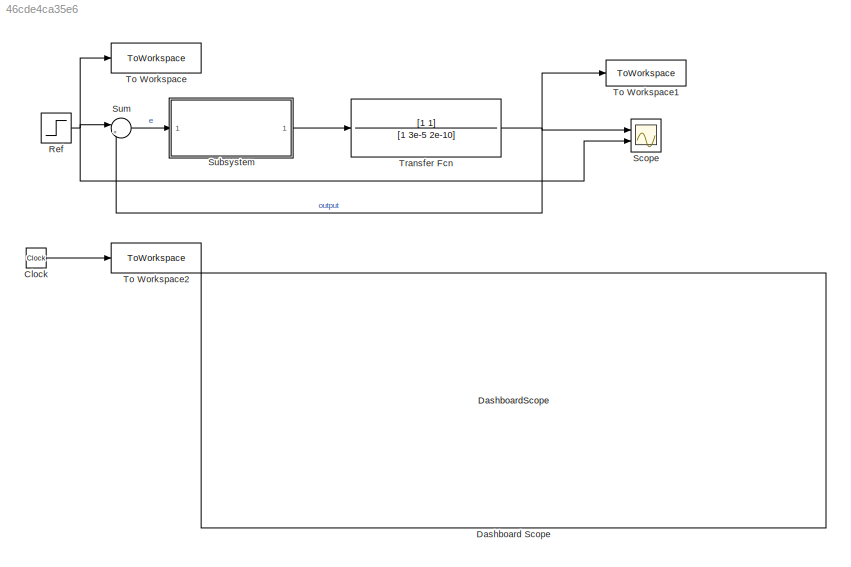
MODEL slx_46cde4ca35e6
KIND model
CONFIG AbsTol = auto
CONFIG EnableMultiTasking = off
CONFIG FixedStep = auto
CONFIG MaxStep = auto
CONFIG MinStep = auto
CONFIG RelTol = 1e-3
CONFIG SampleTimeConstraint = Unconstrained
CONFIG SolverName = VariableStepAuto
CONFIG StartTime = 0.0
CONFIG StopTime = 50
BLOCK [Clock] Clock
BLOCK [DashboardScope] Dashboard Scope
  Ymax = 7
  Ymin = 0
BLOCK [Step] Ref
  After = 5
  SampleTime = 0
BLOCK [Scope] Scope
  Floating = off
  NumInputPorts = 2
  Ports = [2]
  ScopeSpecificationString = Simulink.scopes.TimeScopeBlockCfg('CurrentConfiguration', extmgr.ConfigurationSet(extmgr.Configuration('Core','General UI',true),extmgr.Configuration('Core','Source UI',true),extmgr.Configuration('Sources','WiredSimulink',true),extmgr.Configuration('Visuals','Time Domain',true,'SerializedDisplays',{struct('MinYLimReal','-0.131','MaxYLimReal','1.17902','YLabelReal','','MinYLimMag','0.00000','MaxYLi...<+1430ch>
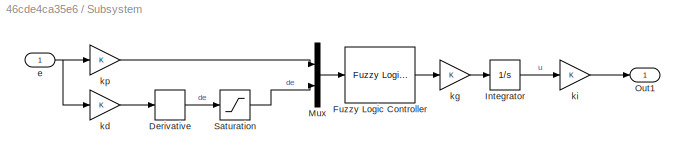
BLOCK [SubSystem] Subsystem
  Ports = [1, 1]
  RequestExecContextInheritance = off
BLOCK [Derivative] Subsystem/Derivative
BLOCK [Reference] Subsystem/Fuzzy Logic Controller  REF=fuzblock/Fuzzy Logic   (lib defined in mdl_858b3b3e7478)
Controller
  Ports = [1, 1]
  SourceBlock = fuzblock/Fuzzy Logic \nController
  SourceProductBaseCode = FL
  SourceType = Fuzzy Inference System
BLOCK [Integrator] Subsystem/Integrator
  Ports = [1, 1]
BLOCK [Mux] Subsystem/Mux
  DisplayOption = bar
  Inputs = 2
  Ports = [2, 1]
BLOCK [Outport] Subsystem/Out1
BLOCK [Saturate] Subsystem/Saturation
  LowerLimit = -3.9
  UpperLimit = 3.9
BLOCK [Inport] Subsystem/e
BLOCK [Gain] Subsystem/kd
BLOCK [Gain] Subsystem/kg
BLOCK [Gain] Subsystem/ki
BLOCK [Gain] Subsystem/kp
BLOCK [Sum] Sum
  Inputs = |+-
  Ports = [2, 1]
BLOCK [ToWorkspace] To Workspace
  FixptAsFi = on
  MaxDataPoints = inf
  Ports = [1]
  SampleTime = 1
  Save2DSignal = 2-D array (concatenate along first dimension)
  VariableName = ref
BLOCK [ToWorkspace] To Workspace1
  FixptAsFi = on
  MaxDataPoints = inf
  Ports = [1]
  SampleTime = 1
  Save2DSignal = 2-D array (concatenate along first dimension)
  VariableName = posModel
BLOCK [ToWorkspace] To Workspace2
  FixptAsFi = on
  MaxDataPoints = inf
  Ports = [1]
  SampleTime = 1
  Save2DSignal = 2-D array (concatenate along first dimension)
  VariableName = Time
BLOCK [TransferFcn] Transfer Fcn
  Denominator = [1 3e-5 2e-10]
  Numerator = [1 1]
LINE Clock:1 -> To Workspace2:1
NET Ref:1 -> Scope:2, Sum:1, To Workspace:1
LINE Subsystem/Derivative:1 -> Subsystem/Saturation:1
LINE Subsystem/Fuzzy Logic Controller:1 -> Subsystem/kg:1
LINE Subsystem/Integrator:1 -> Subsystem/ki:1
LINE Subsystem/Mux:1 -> Subsystem/Fuzzy Logic Controller:1
LINE Subsystem/Saturation:1 -> Subsystem/Mux:2
NET Subsystem/e:1 -> Subsystem/kd:1, Subsystem/kp:1
LINE Subsystem/kd:1 -> Subsystem/Derivative:1
LINE Subsystem/kg:1 -> Subsystem/Integrator:1
LINE Subsystem/ki:1 -> Subsystem/Out1:1
LINE Subsystem/kp:1 -> Subsystem/Mux:1
LINE Subsystem:1 -> Transfer Fcn:1
LINE Sum:1 -> Subsystem:1
NET Transfer Fcn:1 -> Scope:1, Sum:2, To Workspace1:1
note: NET lines group one-source signal fan-out (src -> all destinations, sorted); 1:1 wires keep LINE
